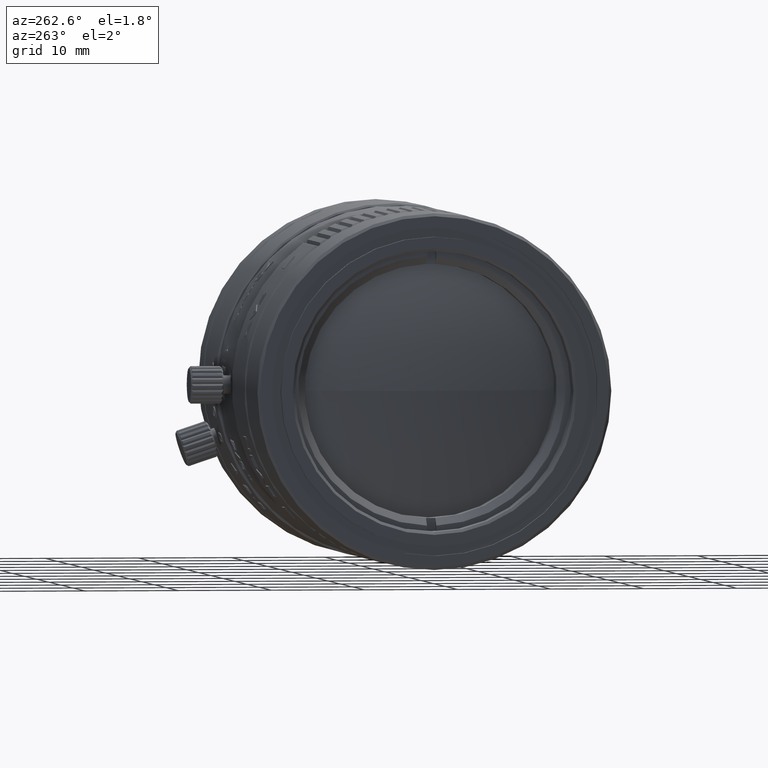
[diagram: clean part render]
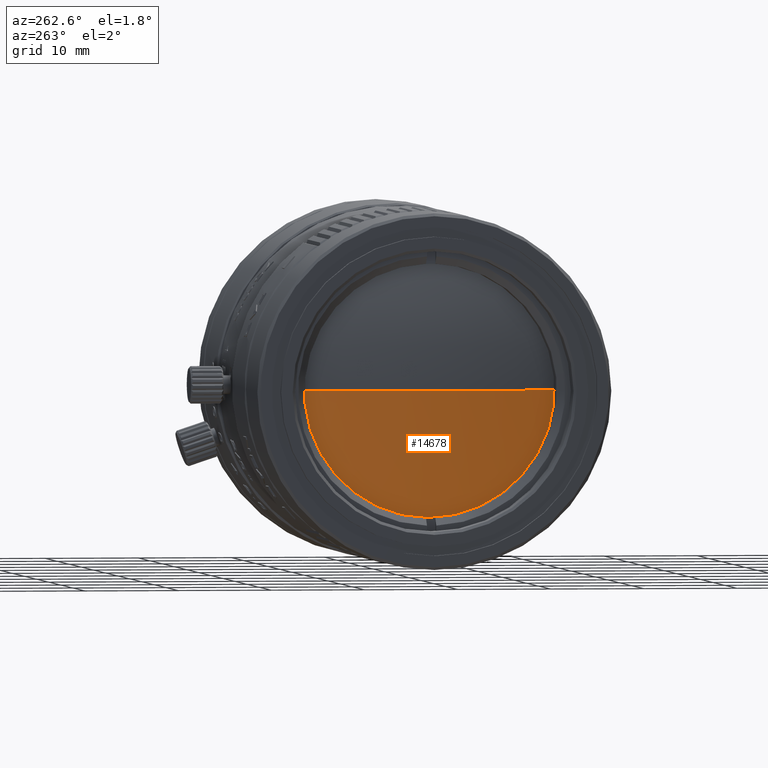
[diagram: same view with one face highlighted and labeled with its STEP entity id]
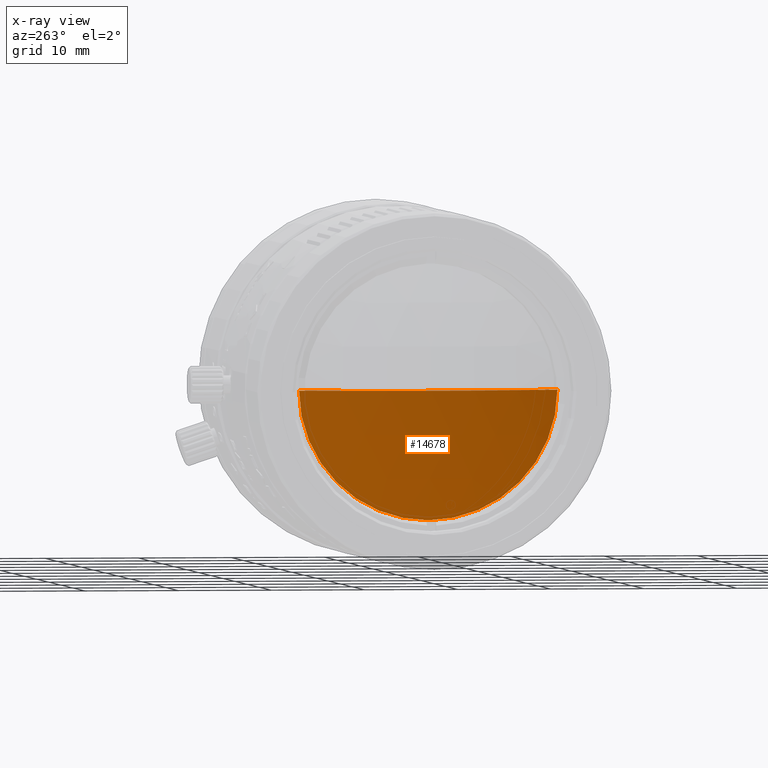
[diagram: x-ray of the same camera — body ghosted, the highlighted face saturated]
A machine part, auxiliary view. The second image highlights one B-rep face of the part: STEP entity #14678.
The next image is the same camera in x-ray: the body ghosted, the highlighted face saturated — about 0% of this face is hidden behind the body in this view.
In plain terms, the highlighted spherical surface has radius 39.422 mm.
Its self-contained STEP definition (entity closure, byte-faithful):
#940 = ORIENTED_EDGE ( 'NONE', *, *, #26415, .F. ) ;
#2835 = EDGE_CURVE ( 'NONE', #34114, #42118, #6439, .T. ) ;
#3321 = DIRECTION ( 'NONE',  ( 1.000000000000000000, 3.128381123706997228E-32, -1.250676041928323609E-16 ) ) ;
#3499 = VERTEX_POINT ( 'NONE', #7449 ) ;
#4307 = VERTEX_POINT ( 'NONE', #11892 ) ;
#6202 = DIRECTION ( 'NONE',  ( 0.000000000000000000, -1.000000000000000000, 1.496134092212746723E-15 ) ) ;
#6439 = CIRCLE ( 'NONE', #28835, 39.42200000000035942 ) ;
#6522 = AXIS2_PLACEMENT_3D ( 'NONE', #33879, #3321, #50109 ) ;
#7449 = CARTESIAN_POINT ( 'NONE',  ( -16.42432269891354935, 4.929761573898423954, -18.90000000000025793 ) ) ;
#9198 = CARTESIAN_POINT ( 'NONE',  ( -16.42432269891354579, 18.80004786563999986, -18.89999999999999858 ) ) ;
#9415 = ORIENTED_EDGE ( 'NONE', *, *, #30653, .F. ) ;
#10085 = CARTESIAN_POINT ( 'NONE',  ( 20.47702202164036223, 18.80004786564008867, -18.90000000000031832 ) ) ;
#11837 = CARTESIAN_POINT ( 'NONE',  ( -18.94497797835999719, 18.80004786564008512, -18.90000000000027924 ) ) ;
#11892 = CARTESIAN_POINT ( 'NONE',  ( -16.42432269891354579, 18.80004786563999986, -32.77028629174158425 ) ) ;
#12711 = CIRCLE ( 'NONE', #46744, 39.42200000000035942 ) ;
#13428 = ORIENTED_EDGE ( 'NONE', *, *, #47861, .F. ) ;
#14678 = ADVANCED_FACE ( 'NONE', ( #27542 ), #40142, .T. ) ;
#17029 = DIRECTION ( 'NONE',  ( 0.000000000000000000, 0.000000000000000000, -1.000000000000000000 ) ) ;
#18169 = CIRCLE ( 'NONE', #6522, 13.87028629174158567 ) ;
#18496 = DIRECTION ( 'NONE',  ( 0.000000000000000000, -1.000000000000000000, 1.496134092212746723E-15 ) ) ;
#18729 = CIRCLE ( 'NONE', #32203, 13.87028629174158567 ) ;
#23534 = EDGE_LOOP ( 'NONE', ( #9415, #32886, #13428, #940 ) ) ;
#26415 = EDGE_CURVE ( 'NONE', #3499, #4307, #18729, .T. ) ;
#27542 = FACE_OUTER_BOUND ( 'NONE', #23534, .T. ) ;
#28835 = AXIS2_PLACEMENT_3D ( 'NONE', #34060, #30155, #36279 ) ;
#30155 = DIRECTION ( 'NONE',  ( -1.095571484681935918E-15, -1.583226659490669296E-15, -1.000000000000000000 ) ) ;
#30653 = EDGE_CURVE ( 'NONE', #34114, #3499, #12711, .T. ) ;
#31412 = DIRECTION ( 'NONE',  ( 1.095571484681935918E-15, 1.460761979575933950E-15, 1.000000000000000000 ) ) ;
#32203 = AXIS2_PLACEMENT_3D ( 'NONE', #9198, #46484, #17029 ) ;
#32886 = ORIENTED_EDGE ( 'NONE', *, *, #2835, .T. ) ;
#33879 = CARTESIAN_POINT ( 'NONE',  ( -16.42432269891354579, 18.80004786563999986, -18.89999999999999858 ) ) ;
#34060 = CARTESIAN_POINT ( 'NONE',  ( 20.47702202164036223, 18.80004786564008867, -18.90000000000031832 ) ) ;
#34114 = VERTEX_POINT ( 'NONE', #11837 ) ;
#36279 = DIRECTION ( 'NONE',  ( 0.000000000000000000, 1.000000000000000000, -1.584141979989967247E-15 ) ) ;
#38672 = AXIS2_PLACEMENT_3D ( 'NONE', #44625, #53015, #6202 ) ;
#40142 = SPHERICAL_SURFACE ( 'NONE', #38672, 39.42200000000035942 ) ;
#42118 = VERTEX_POINT ( 'NONE', #44486 ) ;
#44486 = CARTESIAN_POINT ( 'NONE',  ( -16.42432269891354935, 32.67033415738166724, -18.90000000000029701 ) ) ;
#44625 = CARTESIAN_POINT ( 'NONE',  ( 20.47702202164036223, 18.80004786564008867, -18.90000000000031832 ) ) ;
#46484 = DIRECTION ( 'NONE',  ( 1.000000000000000000, 3.128381123706997228E-32, -1.250676041928323609E-16 ) ) ;
#46744 = AXIS2_PLACEMENT_3D ( 'NONE', #10085, #31412, #18496 ) ;
#47861 = EDGE_CURVE ( 'NONE', #4307, #42118, #18169, .T. ) ;
#50109 = DIRECTION ( 'NONE',  ( 0.000000000000000000, 0.000000000000000000, -1.000000000000000000 ) ) ;
#53015 = DIRECTION ( 'NONE',  ( -1.095571484681935918E-15, -1.496134092212746723E-15, -1.000000000000000000 ) ) ;